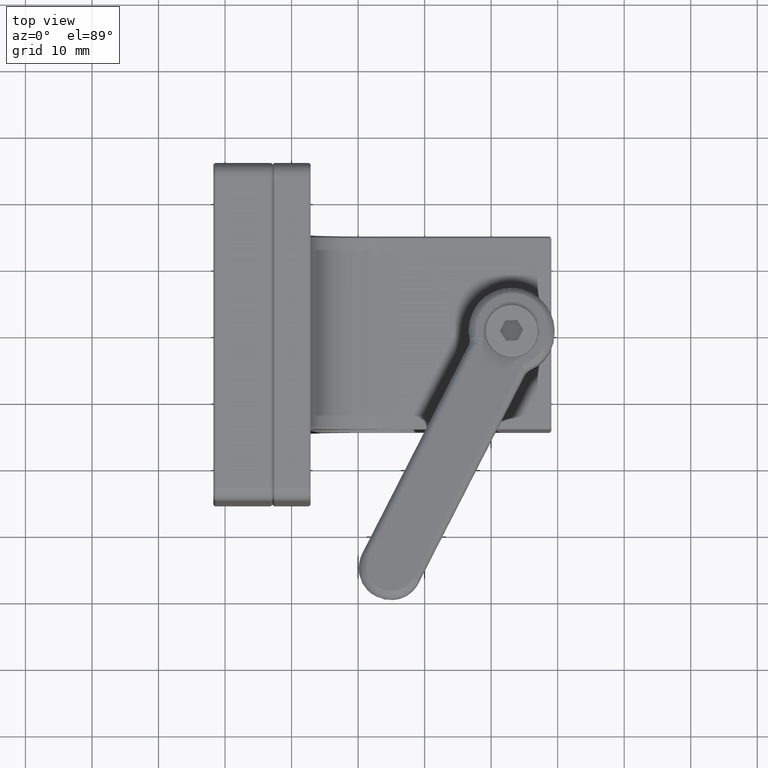
[diagram: clean part render]
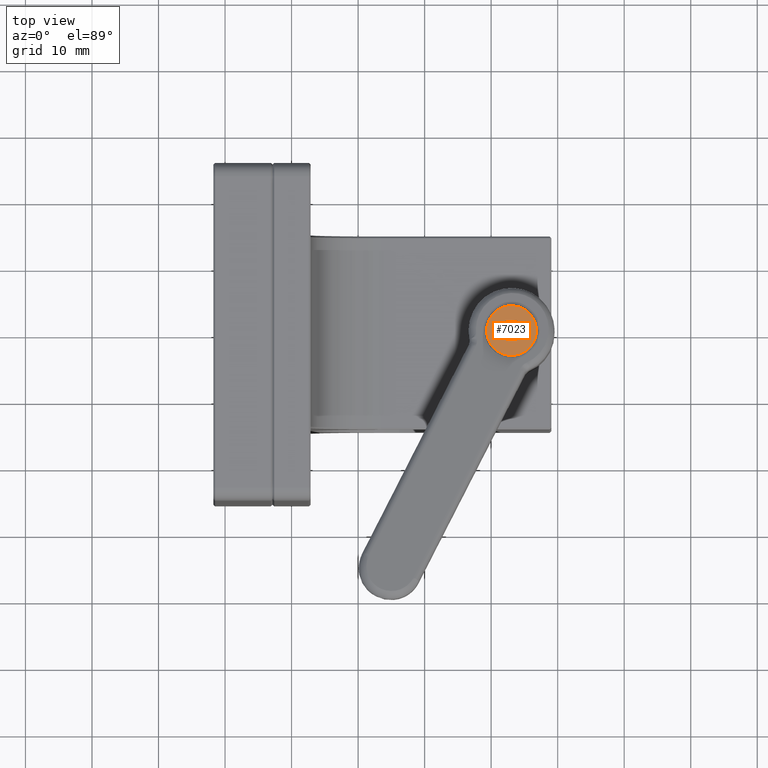
[diagram: same view with one face highlighted and labeled with its STEP entity id]
A machine part, top view. The second image highlights one B-rep face of the part: STEP entity #7023.
In plain terms, the highlighted planar face has unit normal (-0, -0, -1).
Its self-contained STEP definition (entity closure, byte-faithful):
#528 = EDGE_CURVE ( 'NONE', #15338, #17147, #17828, .T. ) ;
#1252 = AXIS2_PLACEMENT_3D ( 'NONE', #17749, #21348, #19488 ) ;
#1831 = VECTOR ( 'NONE', #18521, 1000.000000000000227 ) ;
#1857 = EDGE_CURVE ( 'NONE', #16664, #12542, #12312, .T. ) ;
#1989 = CARTESIAN_POINT ( 'NONE',  ( 1.759763620490105929, 2.421379549447080287E-15, 27.35231477917697873 ) ) ;
#2019 = CARTESIAN_POINT ( 'NONE',  ( 4.914097215673422577E-15, -3.746500000000000608, 27.35231477917697873 ) ) ;
#2177 = ORIENTED_EDGE ( 'NONE', *, *, #16307, .F. ) ;
#2218 = LINE ( 'NONE', #5771, #21101 ) ;
#2319 = CARTESIAN_POINT ( 'NONE',  ( 0.8798818102450990386, -1.524000000000024446, 27.35231477917697873 ) ) ;
#2545 = CARTESIAN_POINT ( 'NONE',  ( 0.8798818102450990386, -1.524000000000024446, 27.35231477917697873 ) ) ;
#3054 = DIRECTION ( 'NONE',  ( 8.831657999393205514E-17, 1.000000000000000000, 0.000000000000000000 ) ) ;
#3396 = DIRECTION ( 'NONE',  ( 8.831657999393205514E-17, 1.000000000000000000, 0.000000000000000000 ) ) ;
#3470 = EDGE_LOOP ( 'NONE', ( #11018, #2177, #5081, #19769, #6225, #9500 ) ) ;
#4038 = DIRECTION ( 'NONE',  ( 0.5000000000000001110, 0.8660254037844385966, -4.415828999696595978E-17 ) ) ;
#4248 = DIRECTION ( 'NONE',  ( -0.5000000000000002220, -0.8660254037844384856, 4.415828999696600908E-17 ) ) ;
#4598 = EDGE_CURVE ( 'NONE', #20791, #18964, #2218, .T. ) ;
#4624 = AXIS2_PLACEMENT_3D ( 'NONE', #4680, #17962, #3054 ) ;
#4680 = CARTESIAN_POINT ( 'NONE',  ( 4.793040756288206054E-15, 2.867134560118266081E-46, 27.35231477917697873 ) ) ;
#5081 = ORIENTED_EDGE ( 'NONE', *, *, #19297, .F. ) ;
#5466 = LINE ( 'NONE', #2319, #20928 ) ;
#5771 = CARTESIAN_POINT ( 'NONE',  ( 0.8798818102451017031, 1.524000000000025556, 27.35231477917697873 ) ) ;
#6141 = ORIENTED_EDGE ( 'NONE', *, *, #528, .T. ) ;
#6225 = ORIENTED_EDGE ( 'NONE', *, *, #1857, .F. ) ;
#6400 = CARTESIAN_POINT ( 'NONE',  ( -0.8798818102450093326, -1.524000000000024446, 27.35231477917697873 ) ) ;
#6428 = DIRECTION ( 'NONE',  ( -0.4999999999999998890, 0.8660254037844385966, 4.415828999696599059E-17 ) ) ;
#6978 = CARTESIAN_POINT ( 'NONE',  ( -1.759763620490010894, -1.339554849103034936E-15, 27.35231477917697873 ) ) ;
#7023 = ADVANCED_FACE ( 'NONE', ( #11323, #8164 ), #18072, .F. ) ;
#7581 = EDGE_CURVE ( 'NONE', #12542, #10637, #21201, .T. ) ;
#8164 = FACE_BOUND ( 'NONE', #3470, .T. ) ;
#8790 = CARTESIAN_POINT ( 'NONE',  ( 5.123918823235472830E-15, 3.746500000000000608, 27.35231477917697873 ) ) ;
#9492 = AXIS2_PLACEMENT_3D ( 'NONE', #19946, #18296, #3396 ) ;
#9500 = ORIENTED_EDGE ( 'NONE', *, *, #20849, .F. ) ;
#10637 = VERTEX_POINT ( 'NONE', #2545 ) ;
#10794 = EDGE_LOOP ( 'NONE', ( #6141, #18613 ) ) ;
#10971 = DIRECTION ( 'NONE',  ( 1.000000000000000000, -8.831657999393200583E-17, -8.831657999393200583E-17 ) ) ;
#11018 = ORIENTED_EDGE ( 'NONE', *, *, #4598, .F. ) ;
#11323 = FACE_OUTER_BOUND ( 'NONE', #10794, .T. ) ;
#11828 = CARTESIAN_POINT ( 'NONE',  ( -0.8798818102450066680, 1.524000000000025556, 27.35231477917697873 ) ) ;
#12104 = CARTESIAN_POINT ( 'NONE',  ( -0.8798818102450066680, 1.524000000000025556, 27.35231477917697873 ) ) ;
#12312 = LINE ( 'NONE', #6978, #1831 ) ;
#12542 = VERTEX_POINT ( 'NONE', #20695 ) ;
#13949 = CARTESIAN_POINT ( 'NONE',  ( 0.8798818102451017031, 1.524000000000025556, 27.35231477917697873 ) ) ;
#14813 = CARTESIAN_POINT ( 'NONE',  ( 1.759763620490105929, 2.421379549447080287E-15, 27.35231477917697873 ) ) ;
#15338 = VERTEX_POINT ( 'NONE', #8790 ) ;
#16287 = VECTOR ( 'NONE', #10971, 1000.000000000000000 ) ;
#16307 = EDGE_CURVE ( 'NONE', #17510, #20791, #21351, .T. ) ;
#16664 = VERTEX_POINT ( 'NONE', #17366 ) ;
#17147 = VERTEX_POINT ( 'NONE', #2019 ) ;
#17351 = VECTOR ( 'NONE', #4248, 1000.000000000000114 ) ;
#17366 = CARTESIAN_POINT ( 'NONE',  ( -1.759763620490010894, -1.339554849103034936E-15, 27.35231477917697873 ) ) ;
#17510 = VERTEX_POINT ( 'NONE', #1989 ) ;
#17749 = CARTESIAN_POINT ( 'NONE',  ( 4.793040756288206054E-15, 2.867134560118266081E-46, 27.35231477917697873 ) ) ;
#17828 = CIRCLE ( 'NONE', #9492, 3.746500000000000608 ) ;
#17962 = DIRECTION ( 'NONE',  ( 8.831657999393199351E-17, 0.000000000000000000, 1.000000000000000000 ) ) ;
#18072 = PLANE ( 'NONE',  #1252 ) ;
#18296 = DIRECTION ( 'NONE',  ( 8.831657999393199351E-17, 0.000000000000000000, 1.000000000000000000 ) ) ;
#18392 = EDGE_CURVE ( 'NONE', #17147, #15338, #18478, .T. ) ;
#18478 = CIRCLE ( 'NONE', #4624, 3.746500000000000608 ) ;
#18521 = DIRECTION ( 'NONE',  ( 0.5000000000000000000, -0.8660254037844385966, -4.415828999696604606E-17 ) ) ;
#18613 = ORIENTED_EDGE ( 'NONE', *, *, #18392, .T. ) ;
#18964 = VERTEX_POINT ( 'NONE', #11828 ) ;
#19047 = DIRECTION ( 'NONE',  ( -1.000000000000000000, 8.831657999393200583E-17, 8.831657999393200583E-17 ) ) ;
#19297 = EDGE_CURVE ( 'NONE', #10637, #17510, #5466, .T. ) ;
#19488 = DIRECTION ( 'NONE',  ( 8.831657999393200583E-17, 1.000000000000000000, -7.799818301824589309E-33 ) ) ;
#19769 = ORIENTED_EDGE ( 'NONE', *, *, #7581, .F. ) ;
#19799 = VECTOR ( 'NONE', #6428, 1000.000000000000227 ) ;
#19946 = CARTESIAN_POINT ( 'NONE',  ( 4.793040756288206054E-15, 2.867134560118266081E-46, 27.35231477917697873 ) ) ;
#20682 = LINE ( 'NONE', #12104, #17351 ) ;
#20695 = CARTESIAN_POINT ( 'NONE',  ( -0.8798818102450093326, -1.524000000000024446, 27.35231477917697873 ) ) ;
#20791 = VERTEX_POINT ( 'NONE', #13949 ) ;
#20849 = EDGE_CURVE ( 'NONE', #18964, #16664, #20682, .T. ) ;
#20928 = VECTOR ( 'NONE', #4038, 1000.000000000000000 ) ;
#21101 = VECTOR ( 'NONE', #19047, 1000.000000000000000 ) ;
#21201 = LINE ( 'NONE', #6400, #16287 ) ;
#21348 = DIRECTION ( 'NONE',  ( -8.831657999393200583E-17, 1.368455531567204171E-48, -1.000000000000000000 ) ) ;
#21351 = LINE ( 'NONE', #14813, #19799 ) ;